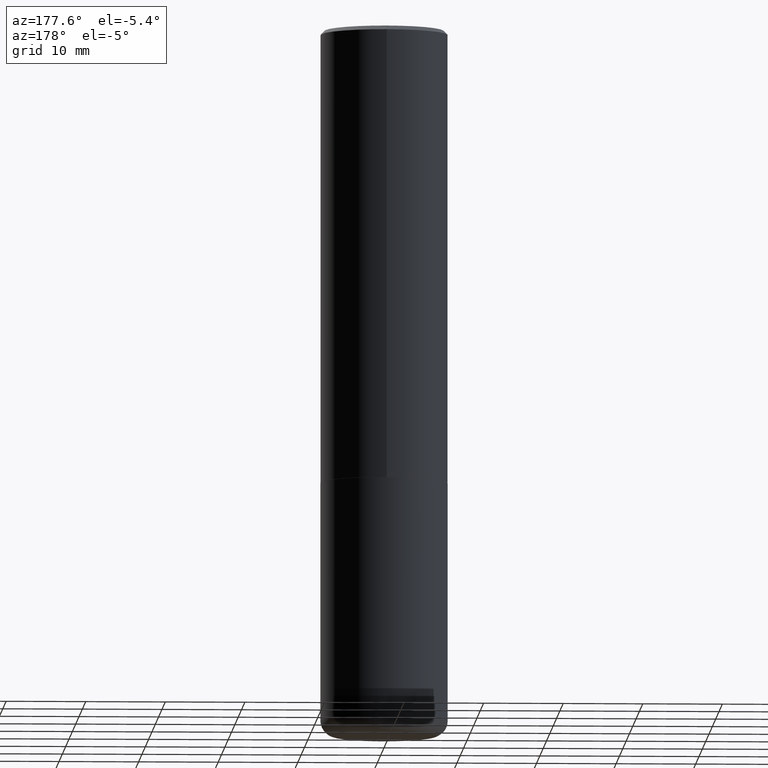
[diagram: clean part render]
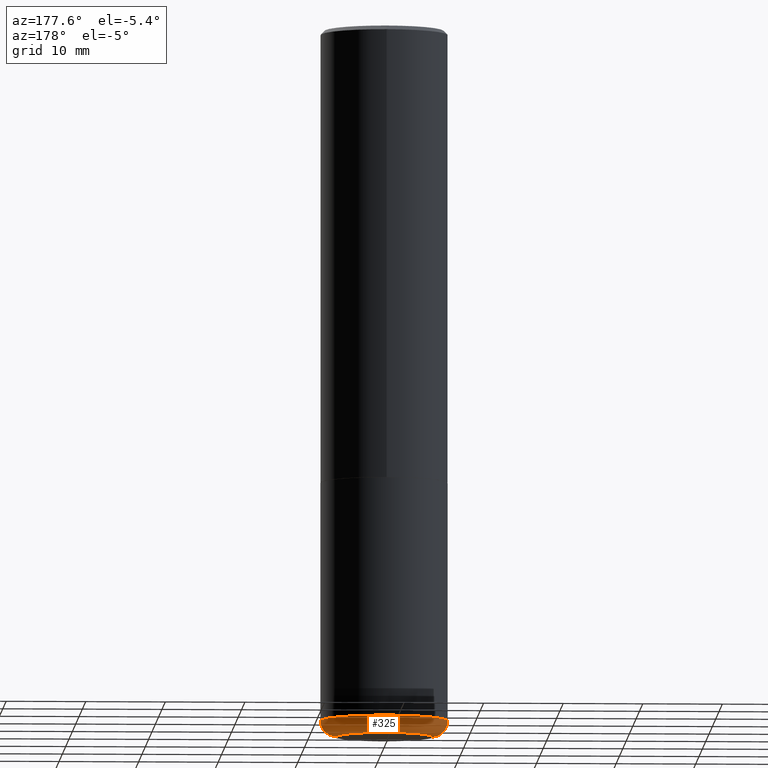
[diagram: same view with one face highlighted and labeled with its STEP entity id]
A machine part, auxiliary view. The second image highlights one B-rep face of the part: STEP entity #325.
In plain terms, the highlighted toroidal blend (fillet) surface has major radius 6.0008 mm and minor (blend) radius 1.999 mm.
Its self-contained STEP definition (entity closure, byte-faithful):
#27 = DIRECTION ( 'NONE',  ( 1.000000000000000000, -6.982962677686276177E-15, 0.000000000000000000 ) ) ;
#28 = CIRCLE ( 'NONE', #398, 0.2362500000000000155 ) ;
#32 = EDGE_CURVE ( 'NONE', #303, #381, #87, .T. ) ;
#36 = CARTESIAN_POINT ( 'NONE',  ( -0.2362500000000000155, -1.028036466857230575E-14, -3.425199999999999800 ) ) ;
#57 = ORIENTED_EDGE ( 'NONE', *, *, #175, .T. ) ;
#58 = DIRECTION ( 'NONE',  ( 1.000000000000000000, -6.982962677686269866E-15, 0.000000000000000000 ) ) ;
#60 = EDGE_CURVE ( 'NONE', #381, #320, #74, .T. ) ;
#74 = CIRCLE ( 'NONE', #239, 0.3149500000000000077 ) ;
#77 = DIRECTION ( 'NONE',  ( -2.445468806185136597E-29, 3.491481338843145583E-15, 1.000000000000000000 ) ) ;
#86 = DIRECTION ( 'NONE',  ( -6.982962677686266711E-15, -1.000000000000000000, 3.491481338843145583E-15 ) ) ;
#87 = CIRCLE ( 'NONE', #108, 0.07870000000000021423 ) ;
#107 = FACE_OUTER_BOUND ( 'NONE', #339, .T. ) ;
#108 = AXIS2_PLACEMENT_3D ( 'NONE', #391, #86, #27 ) ;
#128 = DIRECTION ( 'NONE',  ( -1.000000000000000000, 7.105427357600997914E-15, 0.000000000000000000 ) ) ;
#129 = ORIENTED_EDGE ( 'NONE', *, *, #32, .F. ) ;
#132 = CARTESIAN_POINT ( 'NONE',  ( 8.568678149992100595E-29, -1.223380146317249944E-14, -3.503900000000000237 ) ) ;
#138 = CARTESIAN_POINT ( 'NONE',  ( -0.3149500000000001743, -9.721167535529105379E-15, -3.425199999999999800 ) ) ;
#162 = ORIENTED_EDGE ( 'NONE', *, *, #60, .F. ) ;
#163 = DIRECTION ( 'NONE',  ( 7.105427357601001859E-15, 1.000000000000000000, -3.491481338843145583E-15 ) ) ;
#164 = CIRCLE ( 'NONE', #374, 0.07870000000000021423 ) ;
#175 = EDGE_CURVE ( 'NONE', #243, #320, #164, .T. ) ;
#177 = CARTESIAN_POINT ( 'NONE',  ( 0.2362500000000000155, -1.388352639577588105E-14, -3.503900000000000237 ) ) ;
#209 = CARTESIAN_POINT ( 'NONE',  ( -0.2362500000000000155, -1.013815589273418302E-14, -3.503900000000000237 ) ) ;
#231 = ORIENTED_EDGE ( 'NONE', *, *, #263, .T. ) ;
#233 = AXIS2_PLACEMENT_3D ( 'NONE', #373, #77, #394 ) ;
#239 = AXIS2_PLACEMENT_3D ( 'NONE', #259, #358, #58 ) ;
#243 = VERTEX_POINT ( 'NONE', #209 ) ;
#252 = TOROIDAL_SURFACE ( 'NONE', #233, 0.2362500000000000155, 0.07870000000000022811 ) ;
#259 = CARTESIAN_POINT ( 'NONE',  ( 8.376219754945329068E-29, -1.195902188180554136E-14, -3.425199999999999800 ) ) ;
#263 = EDGE_CURVE ( 'NONE', #303, #243, #28, .T. ) ;
#283 = CARTESIAN_POINT ( 'NONE',  ( 0.3149500000000001743, -1.415830597714283281E-14, -3.425199999999999800 ) ) ;
#303 = VERTEX_POINT ( 'NONE', #177 ) ;
#317 = DIRECTION ( 'NONE',  ( -2.445468806185136597E-29, 3.491481338843145583E-15, 1.000000000000000000 ) ) ;
#320 = VERTEX_POINT ( 'NONE', #138 ) ;
#325 = ADVANCED_FACE ( 'NONE', ( #107 ), #252, .T. ) ;
#337 = DIRECTION ( 'NONE',  ( 1.000000000000000000, -6.982962677686269866E-15, 0.000000000000000000 ) ) ;
#339 = EDGE_LOOP ( 'NONE', ( #231, #57, #162, #129 ) ) ;
#358 = DIRECTION ( 'NONE',  ( -2.445468806185136597E-29, 3.491481338843145583E-15, 1.000000000000000000 ) ) ;
#373 = CARTESIAN_POINT ( 'NONE',  ( 8.376219754945329068E-29, -1.195902188180554136E-14, -3.425199999999999800 ) ) ;
#374 = AXIS2_PLACEMENT_3D ( 'NONE', #36, #163, #128 ) ;
#381 = VERTEX_POINT ( 'NONE', #283 ) ;
#391 = CARTESIAN_POINT ( 'NONE',  ( 0.2362500000000000155, -1.360874681440892298E-14, -3.425199999999999800 ) ) ;
#394 = DIRECTION ( 'NONE',  ( 1.000000000000000000, -6.982962677686265133E-15, 4.883557194083112901E-29 ) ) ;
#398 = AXIS2_PLACEMENT_3D ( 'NONE', #132, #317, #337 ) ;